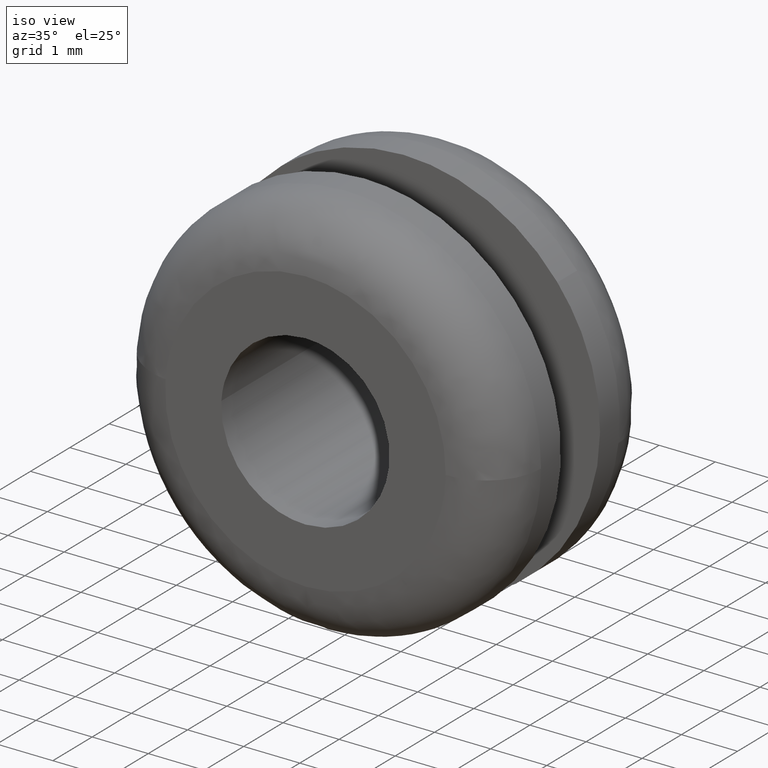
[diagram: clean part render]
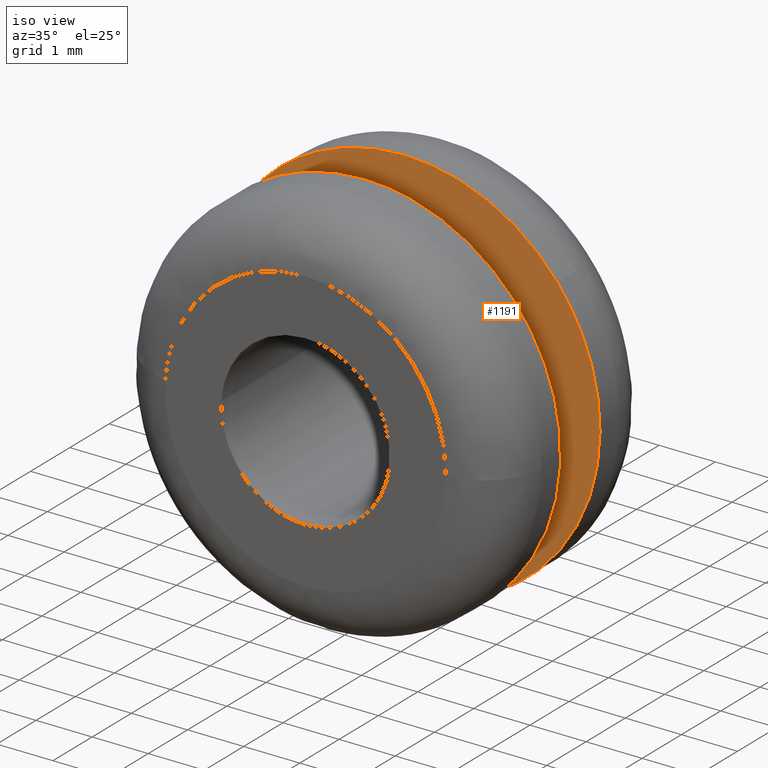
[diagram: same view with one face highlighted and labeled with its STEP entity id]
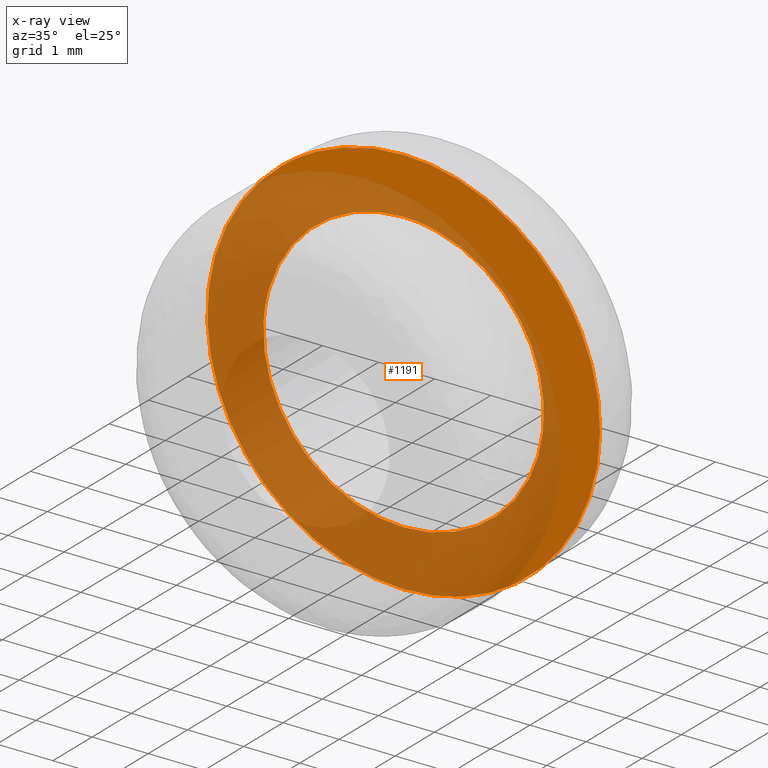
[diagram: x-ray of the same camera — body ghosted, the highlighted face saturated]
A machine part, iso view. The second image highlights one B-rep face of the part: STEP entity #1191.
The next image is the same camera in x-ray: the body ghosted, the highlighted face saturated — about 67% of this face is hidden behind the body in this view.
In plain terms, the highlighted face is a freeform B-spline surface patch.
Its self-contained STEP definition (entity closure, byte-faithful):
#301=CARTESIAN_POINT('',(2.482524107474519,2.500000000000000,-0.295083133712754));
#302=VERTEX_POINT('',#301);
#308=CARTESIAN_POINT('',(0.0,2.500000000000000,2.500000000000000));
#309=VERTEX_POINT('',#308);
#310=CARTESIAN_POINT('',(2.482524107474519,2.500000000000000,-0.295083133712754));
#311=CARTESIAN_POINT('',(2.500000000000000,2.500000000000000,-0.148059059699360));
#312=CARTESIAN_POINT('',(2.500000000000000,2.500000000000000,-3.061516E-016));
#313=CARTESIAN_POINT('',(2.500000000000000,2.500000000000000,2.500000000000000));
#314=CARTESIAN_POINT('',(0.0,2.500000000000000,2.500000000000000));
#322=(BOUNDED_CURVE()B_SPLINE_CURVE(2,(#310,#311,#312,#313,#314),.UNSPECIFIED.,.F.,.U.)B_SPLINE_CURVE_WITH_KNOTS((3,2,3),(0.229562640504181,0.250000000000000,0.500000000000000),.UNSPECIFIED.)CURVE()GEOMETRIC_REPRESENTATION_ITEM()RATIONAL_B_SPLINE_CURVE((0.956027081492513,0.976056143972888,1.0,0.707106781186548,1.0))REPRESENTATION_ITEM(''));
#323=EDGE_CURVE('',#302,#309,#322,.T.);
#325=CARTESIAN_POINT('',(-2.495337147131862,2.500000000000000,0.152618878706711));
#326=VERTEX_POINT('',#325);
#327=CARTESIAN_POINT('',(0.0,2.500000000000000,2.500000000000000));
#328=CARTESIAN_POINT('',(-2.351767499624391,2.500000000000000,2.499999999999999));
#329=CARTESIAN_POINT('',(-2.495337147131862,2.500000000000000,0.152618878706711));
#337=(BOUNDED_CURVE()B_SPLINE_CURVE(2,(#327,#328,#329),.UNSPECIFIED.,.F.,.U.)B_SPLINE_CURVE_WITH_KNOTS((3,3),(0.500000000000000,0.739333133045804),.UNSPECIFIED.)CURVE()GEOMETRIC_REPRESENTATION_ITEM()RATIONAL_B_SPLINE_CURVE((1.0,0.719603793174025,0.976072407738609))REPRESENTATION_ITEM(''));
#338=EDGE_CURVE('',#309,#326,#337,.T.);
#412=CARTESIAN_POINT('',(0.0,2.500000000000000,-2.500000000000000));
#413=VERTEX_POINT('',#412);
#414=CARTESIAN_POINT('',(-2.495337147131862,2.500000000000000,0.152618878706711));
#415=CARTESIAN_POINT('',(-2.500000000000000,2.500000000000000,0.076380669718347));
#416=CARTESIAN_POINT('',(-2.500000000000000,2.500000000000000,-3.061516E-016));
#417=CARTESIAN_POINT('',(-2.500000000000000,2.500000000000000,-2.500000000000000));
#418=CARTESIAN_POINT('',(0.0,2.500000000000000,-2.500000000000000));
#426=(BOUNDED_CURVE()B_SPLINE_CURVE(2,(#414,#415,#416,#417,#418),.UNSPECIFIED.,.F.,.U.)B_SPLINE_CURVE_WITH_KNOTS((3,2,3),(0.739333133045804,0.750000000000000,1.0),.UNSPECIFIED.)CURVE()GEOMETRIC_REPRESENTATION_ITEM()RATIONAL_B_SPLINE_CURVE((0.976072407738609,0.987502988012523,1.0,0.707106781186548,1.0))REPRESENTATION_ITEM(''));
#427=EDGE_CURVE('',#326,#413,#426,.T.);
#429=CARTESIAN_POINT('',(0.0,2.500000000000000,-2.500000000000000));
#430=CARTESIAN_POINT('',(2.220438524289997,2.500000000000000,-2.500000000000000));
#431=CARTESIAN_POINT('',(2.482524107474519,2.500000000000000,-0.295083133712754));
#439=(BOUNDED_CURVE()B_SPLINE_CURVE(2,(#429,#430,#431),.UNSPECIFIED.,.F.,.U.)B_SPLINE_CURVE_WITH_KNOTS((3,3),(0.0,0.229562640504181),.UNSPECIFIED.)CURVE()GEOMETRIC_REPRESENTATION_ITEM()RATIONAL_B_SPLINE_CURVE((1.0,0.731050637213660,0.956027081492513))REPRESENTATION_ITEM(''));
#440=EDGE_CURVE('',#413,#302,#439,.T.);
#532=CARTESIAN_POINT('',(2.739128914882338,2.500000000000000,2.178800768233560));
#533=VERTEX_POINT('',#532);
#539=CARTESIAN_POINT('',(0.0,2.500000000000000,-3.500000000000000));
#540=VERTEX_POINT('',#539);
#541=CARTESIAN_POINT('',(0.0,2.500000000000000,-3.500000000000000));
#542=CARTESIAN_POINT('',(3.500000000000000,2.500000000000000,-3.500000000000001));
#543=CARTESIAN_POINT('',(3.500000000000000,2.500000000000000,-3.061516E-016));
#544=CARTESIAN_POINT('',(3.500000000000000,2.500000000000000,1.222254057519584));
#545=CARTESIAN_POINT('',(2.739128914882338,2.500000000000000,2.178800768233560));
#553=(BOUNDED_CURVE()B_SPLINE_CURVE(2,(#541,#542,#543,#544,#545),.UNSPECIFIED.,.F.,.U.)B_SPLINE_CURVE_WITH_KNOTS((3,2,3),(0.0,0.250000000000000,0.357863826548889),.UNSPECIFIED.)CURVE()GEOMETRIC_REPRESENTATION_ITEM()RATIONAL_B_SPLINE_CURVE((1.0,0.707106781186547,1.0,0.873629666594239,0.856305634975713))REPRESENTATION_ITEM(''));
#554=EDGE_CURVE('',#540,#533,#553,.T.);
#556=CARTESIAN_POINT('',(-2.178800837339518,2.500000000000000,2.739128859913013));
#557=VERTEX_POINT('',#556);
#558=CARTESIAN_POINT('',(-2.178800837339518,2.500000000000000,2.739128859913013));
#559=CARTESIAN_POINT('',(-3.500000000000000,2.500000000000000,1.688200208539917));
#560=CARTESIAN_POINT('',(-3.500000000000000,2.500000000000000,-3.061516E-016));
#561=CARTESIAN_POINT('',(-3.500000000000000,2.500000000000000,-3.500000000000001));
#562=CARTESIAN_POINT('',(0.0,2.500000000000000,-3.500000000000000));
#570=(BOUNDED_CURVE()B_SPLINE_CURVE(2,(#558,#559,#560,#561,#562),.UNSPECIFIED.,.F.,.U.)B_SPLINE_CURVE_WITH_KNOTS((3,2,3),(0.607863834187015,0.750000000000000,1.0),.UNSPECIFIED.)CURVE()GEOMETRIC_REPRESENTATION_ITEM()RATIONAL_B_SPLINE_CURVE((0.856305632522192,0.833477123540928,1.0,0.707106781186547,1.0))REPRESENTATION_ITEM(''));
#571=EDGE_CURVE('',#557,#540,#570,.T.);
#611=CARTESIAN_POINT('',(0.0,2.500000000000000,3.500000000000000));
#612=VERTEX_POINT('',#611);
#613=CARTESIAN_POINT('',(0.0,2.500000000000000,3.500000000000000));
#614=CARTESIAN_POINT('',(-1.222254156590240,2.500000000000000,3.500000000000001));
#615=CARTESIAN_POINT('',(-2.178800837339517,2.500000000000000,2.739128859913012));
#623=(BOUNDED_CURVE()B_SPLINE_CURVE(2,(#613,#614,#615),.UNSPECIFIED.,.F.,.U.)B_SPLINE_CURVE_WITH_KNOTS((3,3),(0.500000000000000,0.607863834187014),.UNSPECIFIED.)CURVE()GEOMETRIC_REPRESENTATION_ITEM()RATIONAL_B_SPLINE_CURVE((1.0,0.873629657645620,0.856305632522192))REPRESENTATION_ITEM(''));
#624=EDGE_CURVE('',#612,#557,#623,.T.);
#626=CARTESIAN_POINT('',(2.739128914882338,2.500000000000000,2.178800768233560));
#627=CARTESIAN_POINT('',(1.688200317385910,2.500000000000000,3.500000000000000));
#628=CARTESIAN_POINT('',(0.0,2.500000000000000,3.500000000000000));
#636=(BOUNDED_CURVE()B_SPLINE_CURVE(2,(#626,#627,#628),.UNSPECIFIED.,.F.,.U.)B_SPLINE_CURVE_WITH_KNOTS((3,3),(0.357863826548889,0.500000000000000),.UNSPECIFIED.)CURVE()GEOMETRIC_REPRESENTATION_ITEM()RATIONAL_B_SPLINE_CURVE((0.856305634975713,0.833477114592308,1.0))REPRESENTATION_ITEM(''));
#637=EDGE_CURVE('',#533,#612,#636,.T.);
#1174=CARTESIAN_POINT('',(-3.849567575533389,2.500000000000000,-3.849649986432642));
#1175=CARTESIAN_POINT('',(-3.849567575533389,2.500000000000000,3.849650174187273));
#1176=CARTESIAN_POINT('',(3.849644680101871,2.500000000000000,-3.849649986432642));
#1177=CARTESIAN_POINT('',(3.849644680101871,2.500000000000000,3.849650174187273));
#1178=B_SPLINE_SURFACE_WITH_KNOTS('',1,1,((#1174,#1176),(#1175,#1177)),.UNSPECIFIED.,.F.,.F.,.U.,(2,2),(2,2),(0.0,7.699300160619915),(0.0,7.699212255635260),.UNSPECIFIED.);
#1179=ORIENTED_EDGE('',*,*,#554,.T.);
#1180=ORIENTED_EDGE('',*,*,#637,.T.);
#1181=ORIENTED_EDGE('',*,*,#624,.T.);
#1182=ORIENTED_EDGE('',*,*,#571,.T.);
#1183=EDGE_LOOP('',(#1179,#1180,#1181,#1182));
#1184=FACE_OUTER_BOUND('',#1183,.T.);
#1185=ORIENTED_EDGE('',*,*,#338,.F.);
#1186=ORIENTED_EDGE('',*,*,#323,.F.);
#1187=ORIENTED_EDGE('',*,*,#440,.F.);
#1188=ORIENTED_EDGE('',*,*,#427,.F.);
#1189=EDGE_LOOP('',(#1185,#1186,#1187,#1188));
#1190=FACE_BOUND('',#1189,.T.);
#1191=ADVANCED_FACE('',(#1184,#1190),#1178,.F.);